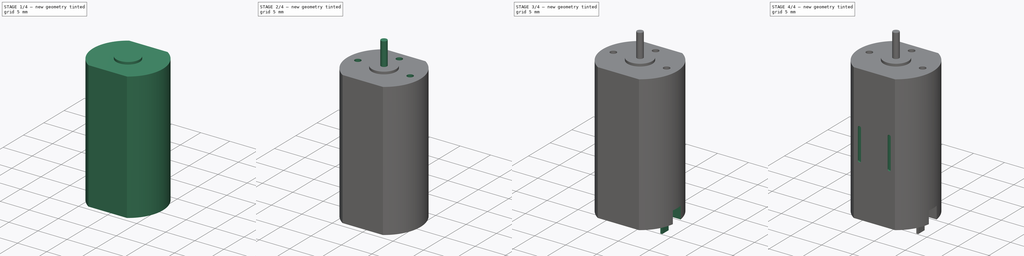
[diagram: build sequence overview — one tinted view per stage of 4, left to right]
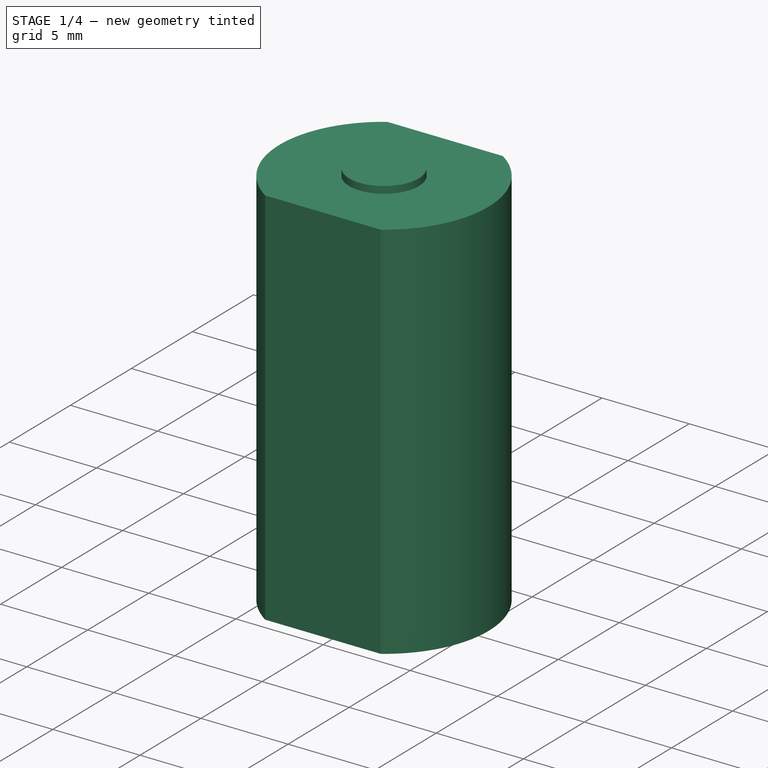
[diagram: stage 1 of 4 — iso view after this stage's code; geometry added in this stage tinted green]
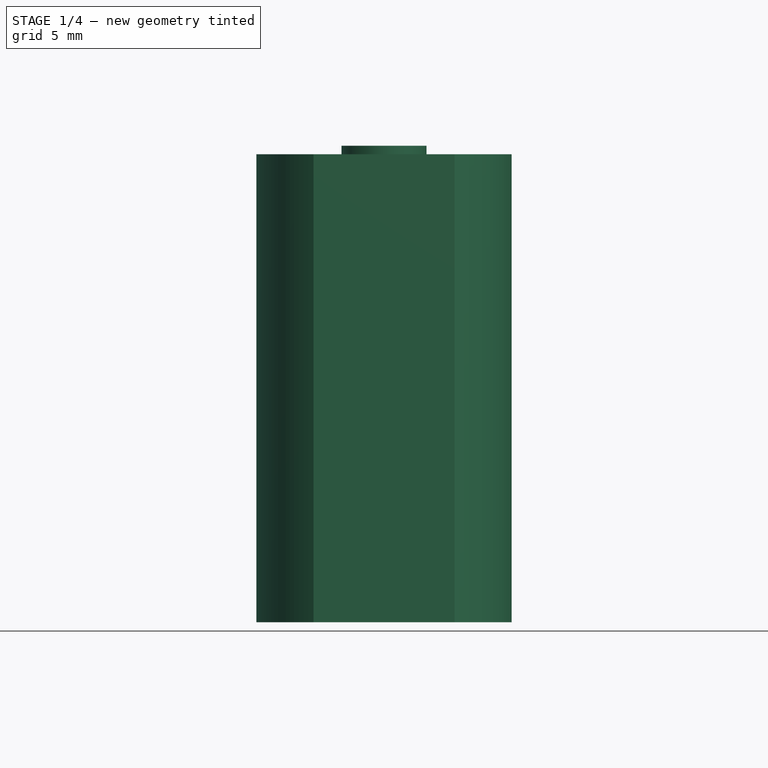
[diagram: stage 1 of 4 — front view after this stage's code; geometry added in this stage tinted green]
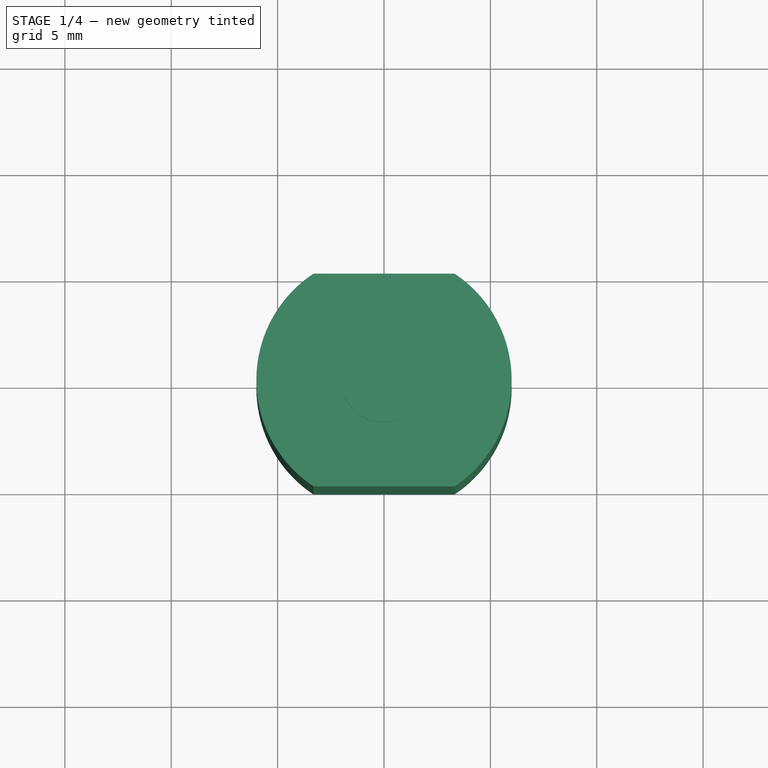
[diagram: stage 1 of 4 — top view after this stage's code; geometry added in this stage tinted green]
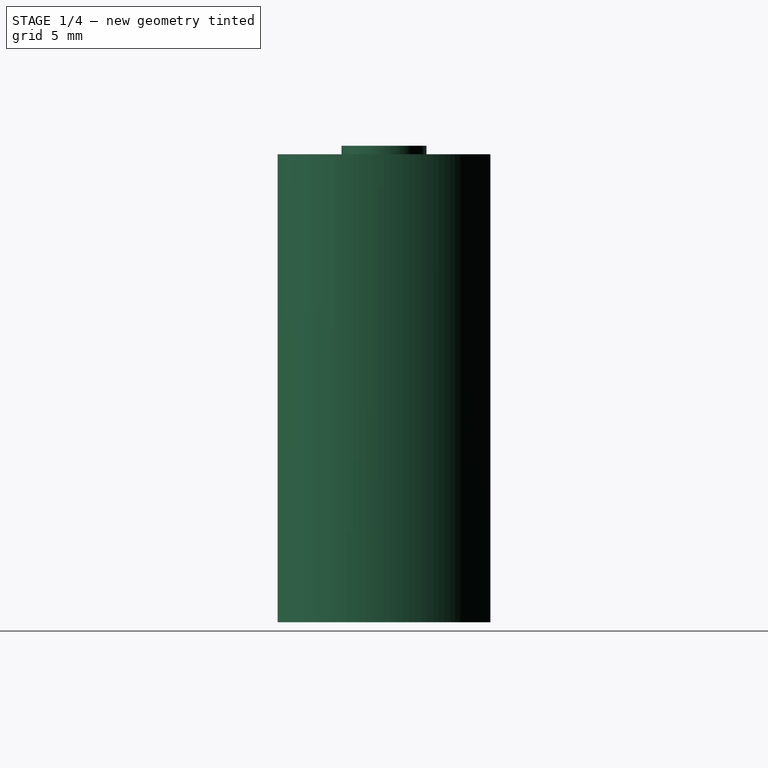
[diagram: stage 1 of 4 — right view after this stage's code; geometry added in this stage tinted green]
FCSTD DOCUMENT  (FreeCAD 0.18R16131 (Git))
Label: Micromotor
License: All rights reserved
LicenseURL: http://en.wikipedia.org/wiki/All_rights_reserved
objects: Sketcher::SketchObject×8, PartDesign::Pad×5, PartDesign::Pocket×3, PartDesign::PolarPattern×1, PartDesign::Body×1
note: 26 computed .brp shape members not serialized (recipe doc carries the construction recipe); baked Part::Feature solids carry a one-line shape summary decoded from their .brp

FEATURE [Sketcher::SketchObject] Sketch
  MapMode = 5
  Support = -> [XY_Plane]
  sketch-geometry (4):
    g0: ArcOfCircle CenterX=0 CenterY=0 CenterZ=0 NormalX=0 NormalY=0 NormalZ=1 AngleXU=0 Radius=6 StartAngle=2.15648 EndAngle=4.1267
    g1: ArcOfCircle CenterX=0 CenterY=0 CenterZ=0 NormalX=0 NormalY=0 NormalZ=1 AngleXU=0 Radius=6 StartAngle=5.29807 EndAngle=7.2683
    g2: LineSegment StartX=-3.31662 StartY=5 StartZ=0 EndX=3.31662 EndY=5 EndZ=0
    g3: LineSegment StartX=-3.31662 StartY=-5 StartZ=0 EndX=3.31662 EndY=-5 EndZ=0
  constraints (12):
    c: Coincident(g0,g-1)
    c: Coincident(g1,g0)
    c: Coincident(g2,g0)
    c: Coincident(g2,g1)
    c: Horizontal(g2)
    c: Coincident(g3,g0)
    c: Coincident(g3,g1)
    c: Horizontal(g3)
    c: Equal(g3,g2)
    c: DistanceY(g0,g0) = 10
    c: Radius(g0) = 6
    c: Equal(g0,g1)
FEATURE [PartDesign::Pad] Pad
  Length = 22
  Length2 = 100
  Midplane = true
  Profile = -> Sketch
  Type = 0
FEATURE [Sketcher::SketchObject] Sketch001
  MapMode = 5
  Placement = pos=(0,0,11) rot=(0,0,1;0rad)
  Support = -> [Pad]
  sketch-geometry (1):
    g0: Circle CenterX=0 CenterY=0 CenterZ=0 NormalX=0 NormalY=0 NormalZ=1 AngleXU=0 Radius=2
  constraints (2):
    c: Coincident(g0,g-1)
    c: Radius(g0) = 2
FEATURE [PartDesign::Pad] Pad001
  BaseFeature = -> Pad
  Length = 0.4
  Length2 = 100
  Profile = -> Sketch001
  Type = 0
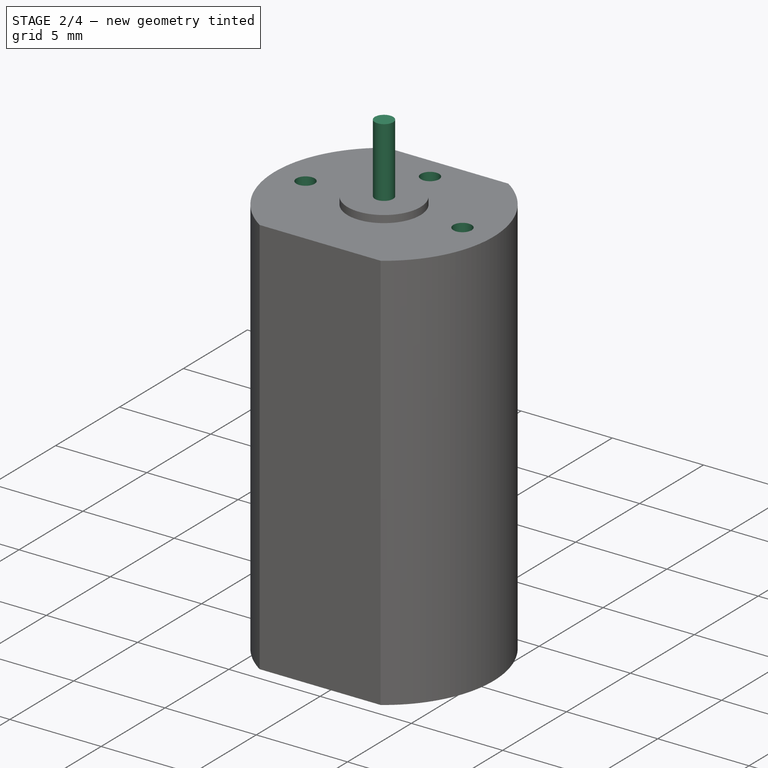
[diagram: stage 2 of 4 — iso view after this stage's code; geometry added in this stage tinted green]
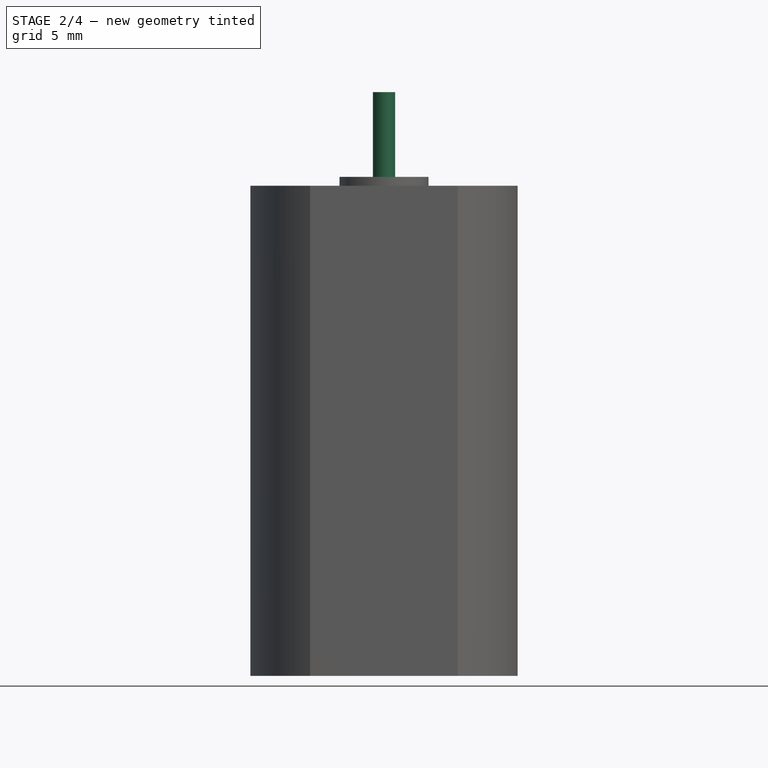
[diagram: stage 2 of 4 — front view after this stage's code; geometry added in this stage tinted green]
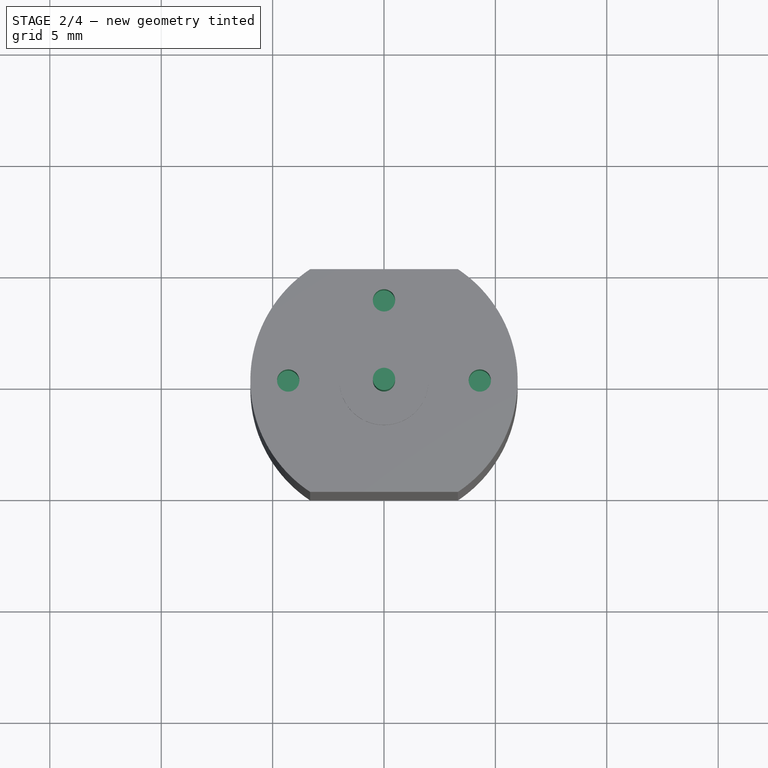
[diagram: stage 2 of 4 — top view after this stage's code; geometry added in this stage tinted green]
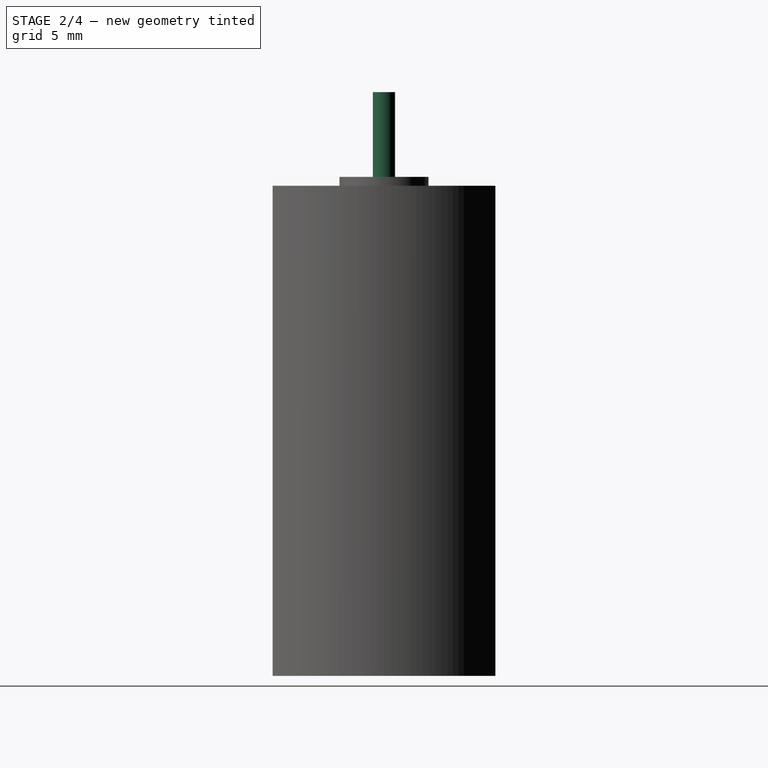
[diagram: stage 2 of 4 — right view after this stage's code; geometry added in this stage tinted green]
FEATURE [Sketcher::SketchObject] Sketch002
  MapMode = 5
  Placement = pos=(0,0,11.4) rot=(0,0,1;0rad)
  Support = -> [Pad001]
  sketch-geometry (1):
    g0: Circle CenterX=0 CenterY=0 CenterZ=0 NormalX=0 NormalY=0 NormalZ=1 AngleXU=0 Radius=0.5
  constraints (2):
    c: Coincident(g0,g-1)
    c: Radius(g0) = 0.5
FEATURE [PartDesign::Pad] Pad002
  BaseFeature = -> Pad001
  Length = 3.8
  Length2 = 100
  Profile = -> Sketch002
  Type = 0
FEATURE [Sketcher::SketchObject] Sketch003
  MapMode = 5
  Placement = pos=(0,0,11) rot=(0,0,1;0rad)
  Support = -> [Pad002]
  sketch-geometry (5):
    g0: Circle CenterX=0 CenterY=3.6 CenterZ=0 NormalX=0 NormalY=0 NormalZ=1 AngleXU=0 Radius=0.5
    g1: Circle CenterX=-4.3 CenterY=0 CenterZ=0 NormalX=0 NormalY=0 NormalZ=1 AngleXU=0 Radius=0.5
    g2: Circle CenterX=4.3 CenterY=0 CenterZ=0 NormalX=0 NormalY=0 NormalZ=1 AngleXU=0 Radius=0.5
    g3: LineSegment [constr] StartX=4.3 StartY=0 StartZ=0 EndX=0 EndY=0 EndZ=0
    g4: LineSegment [constr] StartX=-4.3 StartY=0 StartZ=0 EndX=0 EndY=0 EndZ=0
  constraints (13):
    c: PointOnObject(g0,g-2)
    c: PointOnObject(g1,g-1)
    c: PointOnObject(g2,g-1)
    c: DistanceY(g-1,g0) = 3.6
    c: DistanceX(g-1,g2) = 4.3
    c: Coincident(g3,g2)
    c: Coincident(g3,g-1)
    c: Coincident(g4,g1)
    c: Coincident(g-1,g4)
    c: Equal(g4,g3)
    c: Equal(g0,g1)
    c: Equal(g1,g2)
    c: Radius(g0) = 0.5
FEATURE [PartDesign::Pocket] Pocket
  BaseFeature = -> Pad002
  Length = 3
  Length2 = 100
  Profile = -> Sketch003
  Type = 0
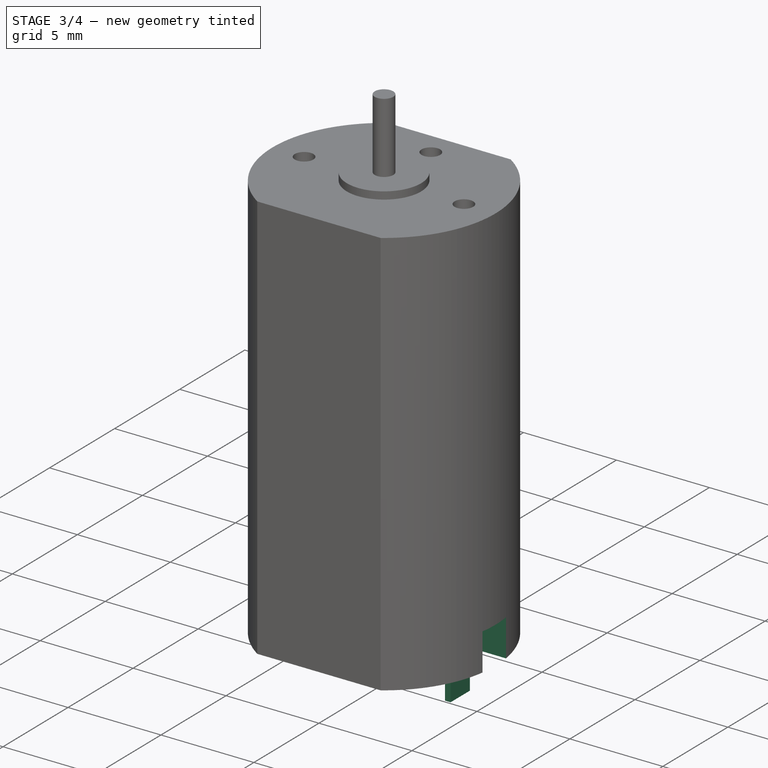
[diagram: stage 3 of 4 — iso view after this stage's code; geometry added in this stage tinted green]
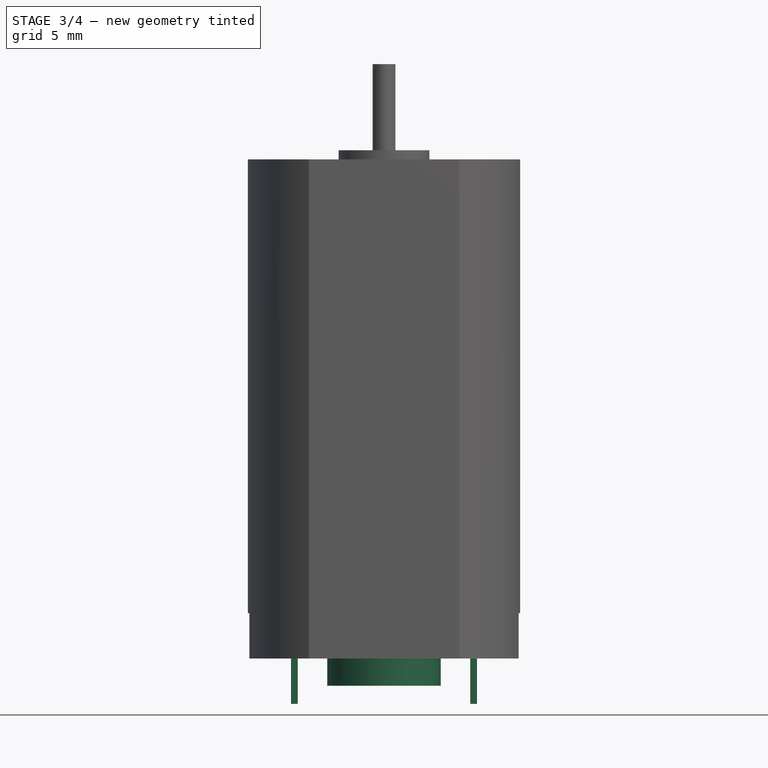
[diagram: stage 3 of 4 — front view after this stage's code; geometry added in this stage tinted green]
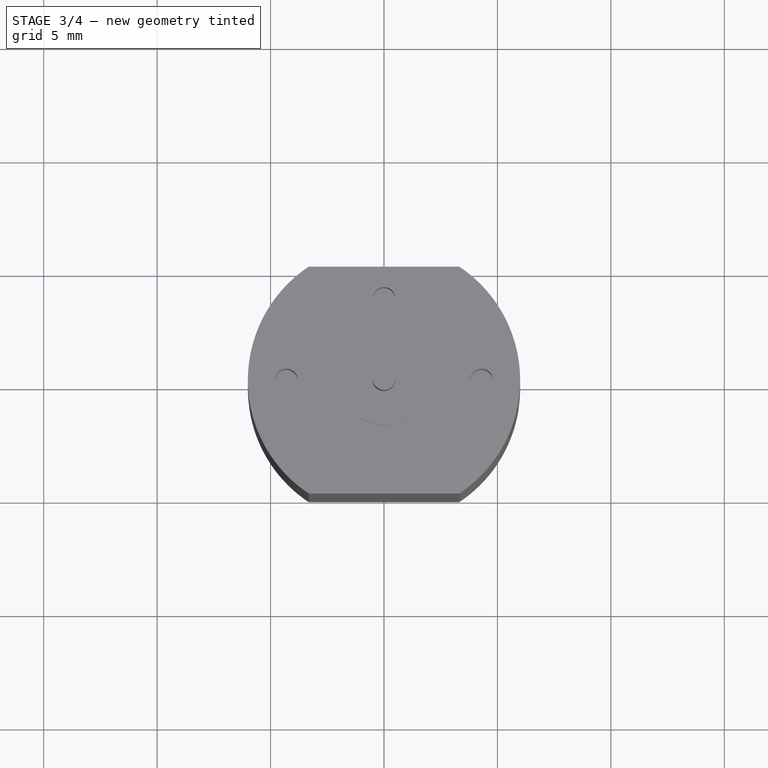
[diagram: stage 3 of 4 — top view after this stage's code; geometry added in this stage tinted green]
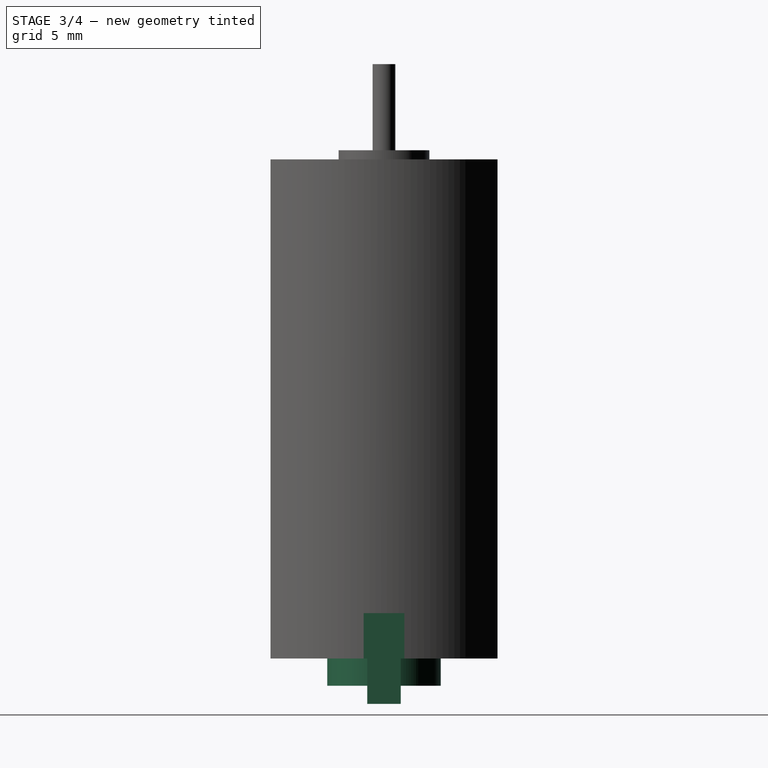
[diagram: stage 3 of 4 — right view after this stage's code; geometry added in this stage tinted green]
FEATURE [Sketcher::SketchObject] Sketch004
  MapMode = 5
  Placement = pos=(0,0,-11) rot=(1,0,0;3.14159rad)
  Support = -> [Pocket]
  sketch-geometry (2):
    g0: Circle CenterX=0 CenterY=0 CenterZ=0 NormalX=0 NormalY=0 NormalZ=1 AngleXU=0 Radius=2.5
    g1: Circle CenterX=0 CenterY=0 CenterZ=0 NormalX=0 NormalY=0 NormalZ=1 AngleXU=0 Radius=1
  constraints (4):
    c: Coincident(g0,g-1)
    c: Radius(g0) = 2.5
    c: Coincident(g1,g0)
    c: Radius(g1) = 1
FEATURE [PartDesign::Pad] Pad003
  BaseFeature = -> Pocket
  Length = 1.2
  Length2 = 100
  Profile = -> Sketch004
  Type = 0
FEATURE [Sketcher::SketchObject] Sketch005
  MapMode = 5
  Placement = pos=(0,0,-11) rot=(1,0,0;3.14159rad)
  Support = -> [Pad003]
  sketch-geometry (12):
    g0: LineSegment StartX=-7.5 StartY=0.9 StartZ=0 EndX=-4.5 EndY=0.9 EndZ=0
    g1: LineSegment StartX=-4.5 StartY=0.9 StartZ=0 EndX=-4.5 EndY=-0.9 EndZ=0
    g2: LineSegment StartX=-4.5 StartY=-0.9 StartZ=0 EndX=-7.5 EndY=-0.9 EndZ=0
    g3: LineSegment StartX=-7.5 StartY=-0.9 StartZ=0 EndX=-7.5 EndY=0.9 EndZ=0
    g4: LineSegment StartX=7.5 StartY=0.9 StartZ=0 EndX=4.5 EndY=0.9 EndZ=0
    g5: LineSegment StartX=4.5 StartY=0.9 StartZ=0 EndX=4.5 EndY=-0.9 EndZ=0
    g6: LineSegment StartX=4.5 StartY=-0.9 StartZ=0 EndX=7.5 EndY=-0.9 EndZ=0
    g7: LineSegment StartX=7.5 StartY=-0.9 StartZ=0 EndX=7.5 EndY=0.9 EndZ=0
    g8: LineSegment [constr] StartX=-4.5 StartY=0.9 StartZ=0 EndX=0 EndY=0 EndZ=0
    g9: LineSegment [constr] StartX=0 StartY=0 StartZ=0 EndX=-4.5 EndY=-0.9 EndZ=0
    g10: LineSegment [constr] StartX=0 StartY=0 StartZ=0 EndX=4.5 EndY=0.9 EndZ=0
    g11: LineSegment [constr] StartX=0 StartY=0 StartZ=0 EndX=4.5 EndY=-0.9 EndZ=0
  constraints (32):
    c: Coincident(g0,g1)
    c: Coincident(g1,g2)
    c: Coincident(g2,g3)
    c: Coincident(g3,g0)
    c: Horizontal(g0)
    c: Horizontal(g2)
    c: Vertical(g1)
    c: Vertical(g3)
    c: Coincident(g4,g5)
    c: Coincident(g5,g6)
    c: Coincident(g6,g7)
    c: Coincident(g7,g4)
    c: Horizontal(g4)
    c: Horizontal(g6)
    c: Vertical(g5)
    c: Vertical(g7)
    c: Equal(g1,g5)
    c: Equal(g4,g0)
    c: Coincident(g8,g0)
    c: Coincident(g8,g-1)
    c: Coincident(g9,g8)
    c: Coincident(g9,g1)
    c: Coincident(g10,g8)
    c: Coincident(g10,g4)
    c: Coincident(g11,g8)
    c: Coincident(g11,g5)
    c: Equal(g11,g10)
    c: Equal(g10,g8)
    c: Equal(g8,g9)
    c: DistanceX(g0,g0) = 3
    c: DistanceX(g0,g4) = 9
    c: DistanceY(g3,g3) = 1.8
FEATURE [PartDesign::Pocket] Pocket001
  BaseFeature = -> Pad003
  Length = 2
  Length2 = 100
  Profile = -> Sketch005
  Type = 0
FEATURE [Sketcher::SketchObject] Sketch006
  MapMode = 5
  Placement = pos=(0,0,-11) rot=(1,0,0;3.14159rad)
  Support = -> [Pocket001]
  sketch-geometry (12):
    g0: LineSegment StartX=-4.1 StartY=0.739024 StartZ=0 EndX=-3.8 EndY=0.739024 EndZ=0
    g1: LineSegment StartX=-3.8 StartY=0.739024 StartZ=0 EndX=-3.8 EndY=-0.739024 EndZ=0
    g2: LineSegment StartX=-3.8 StartY=-0.739024 StartZ=0 EndX=-4.1 EndY=-0.739024 EndZ=0
    g3: LineSegment StartX=-4.1 StartY=-0.739024 StartZ=0 EndX=-4.1 EndY=0.739024 EndZ=0
    g4: LineSegment StartX=3.8 StartY=0.739024 StartZ=0 EndX=4.1 EndY=0.739024 EndZ=0
    g5: LineSegment StartX=4.1 StartY=0.739024 StartZ=0 EndX=4.1 EndY=-0.739024 EndZ=0
    g6: LineSegment StartX=4.1 StartY=-0.739024 StartZ=0 EndX=3.8 EndY=-0.739024 EndZ=0
    g7: LineSegment StartX=3.8 StartY=-0.739024 StartZ=0 EndX=3.8 EndY=0.739024 EndZ=0
    g8: LineSegment [constr] StartX=-3.8 StartY=0.739024 StartZ=0 EndX=0 EndY=0 EndZ=0
    g9: LineSegment [constr] StartX=0 StartY=0 StartZ=0 EndX=3.8 EndY=0.739024 EndZ=0
    g10: LineSegment [constr] StartX=3.8 StartY=-0.739024 StartZ=0 EndX=0 EndY=0 EndZ=0
    g11: LineSegment [constr] StartX=0 StartY=0 StartZ=0 EndX=-3.8 EndY=-0.739024 EndZ=0
  constraints (31):
    c: Coincident(g0,g1)
    c: Coincident(g1,g2)
    c: Coincident(g2,g3)
    c: Coincident(g3,g0)
    c: Horizontal(g0)
    c: Horizontal(g2)
    c: Vertical(g1)
    c: Vertical(g3)
    c: Coincident(g4,g5)
    c: Coincident(g5,g6)
    c: Coincident(g6,g7)
    c: Coincident(g7,g4)
    c: Horizontal(g4)
    c: Horizontal(g6)
    c: Vertical(g5)
    c: Vertical(g7)
    c: Coincident(g8,g0)
    c: Coincident(g8,g-1)
    c: Coincident(g9,g8)
    c: Coincident(g9,g4)
    c: Coincident(g10,g6)
    c: Coincident(g10,g8)
    c: Coincident(g11,g8)
    c: Coincident(g11,g1)
    c: Equal(g11,g8)
    c: Equal(g8,g9)
    c: Equal(g9,g10)
    c: Equal(g7,g1)
    c: Equal(g0,g4)
    c: DistanceX(g0,g0) = 0.3
    c: DistanceX(g0,g4) = 8.2
FEATURE [PartDesign::Pad] Pad004
  BaseFeature = -> Pocket001
  Length = 2
  Length2 = 100
  Profile = -> Sketch006
  Type = 0
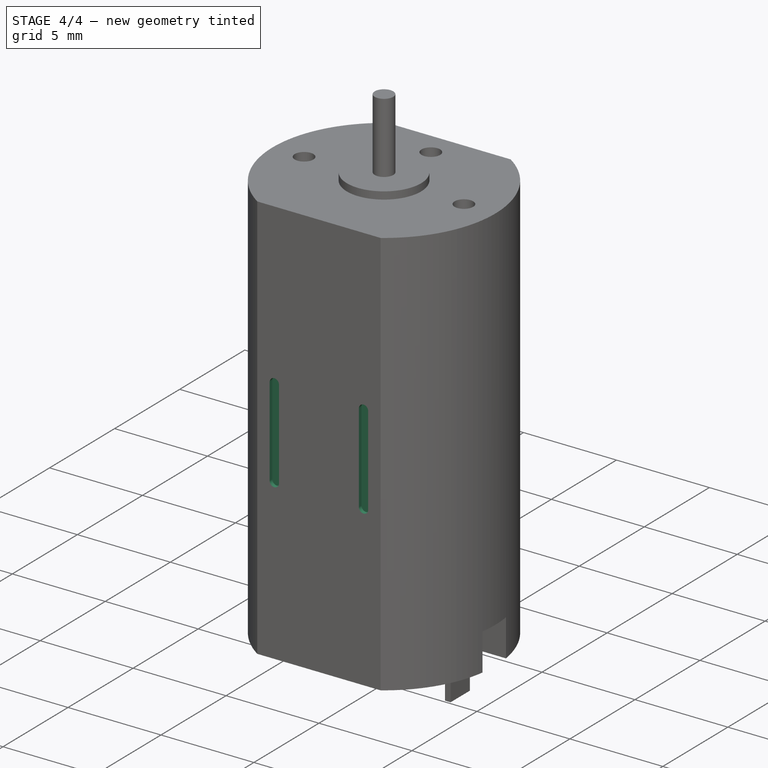
[diagram: stage 4 of 4 — iso view after this stage's code; geometry added in this stage tinted green]
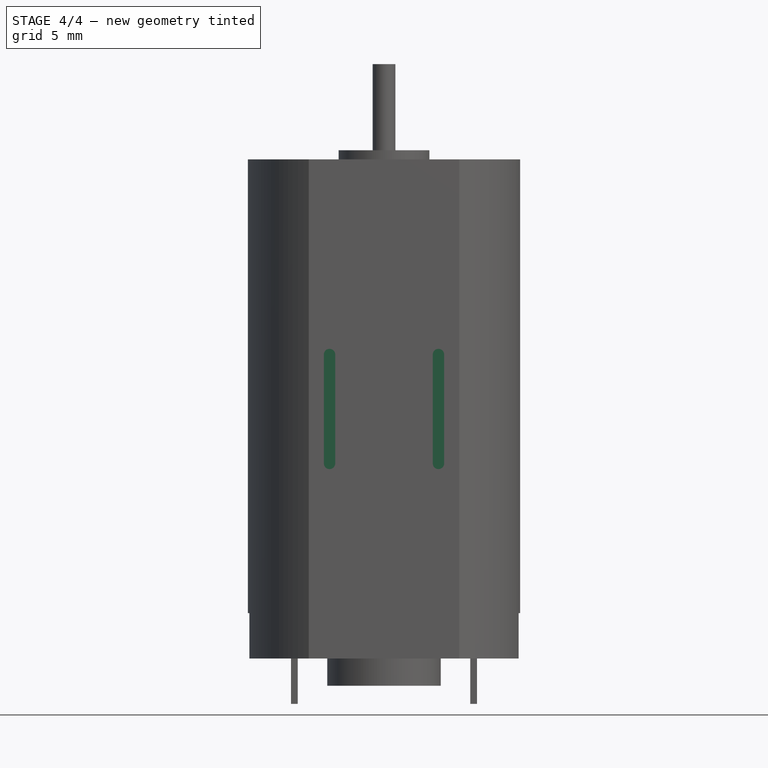
[diagram: stage 4 of 4 — front view after this stage's code; geometry added in this stage tinted green]
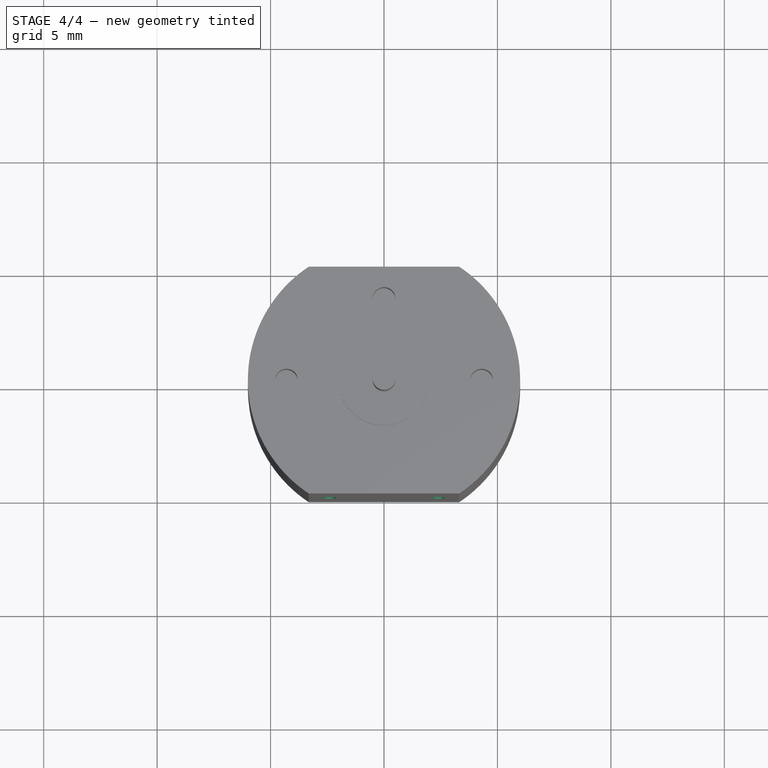
[diagram: stage 4 of 4 — top view after this stage's code; geometry added in this stage tinted green]
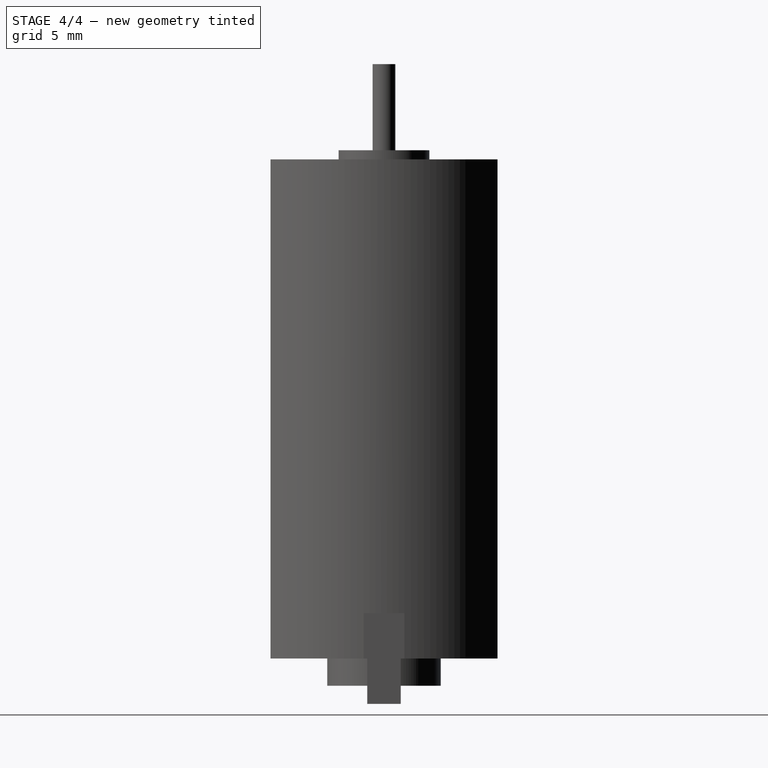
[diagram: stage 4 of 4 — right view after this stage's code; geometry added in this stage tinted green]
FEATURE [Sketcher::SketchObject] Sketch007
  MapMode = 5
  Placement = pos=(0,-5,0) rot=(1,0,0;1.5708rad)
  Support = -> [Pad004]
  sketch-geometry (12):
    g0: ArcOfCircle CenterX=-2.4 CenterY=2.4 CenterZ=0 NormalX=0 NormalY=0 NormalZ=1 AngleXU=0 Radius=0.25 StartAngle=0 EndAngle=3.14159
    g1: ArcOfCircle CenterX=-2.4 CenterY=-2.4 CenterZ=0 NormalX=0 NormalY=0 NormalZ=1 AngleXU=0 Radius=0.25 StartAngle=3.14159 EndAngle=6.28319
    g2: LineSegment StartX=-2.65 StartY=2.4 StartZ=0 EndX=-2.65 EndY=-2.4 EndZ=0
    g3: LineSegment StartX=-2.15 StartY=2.4 StartZ=0 EndX=-2.15 EndY=-2.4 EndZ=0
    g4: ArcOfCircle CenterX=2.4 CenterY=2.4 CenterZ=0 NormalX=0 NormalY=0 NormalZ=1 AngleXU=0 Radius=0.25 StartAngle=6e-16 EndAngle=3.14159
    g5: ArcOfCircle CenterX=2.4 CenterY=-2.4 CenterZ=0 NormalX=0 NormalY=0 NormalZ=1 AngleXU=0 Radius=0.25 StartAngle=3.14159 EndAngle=6.28319
    g6: LineSegment StartX=2.15 StartY=2.4 StartZ=0 EndX=2.15 EndY=-2.4 EndZ=0
    g7: LineSegment StartX=2.65 StartY=2.4 StartZ=0 EndX=2.65 EndY=-2.4 EndZ=0
    g8: LineSegment [constr] StartX=0 StartY=0 StartZ=0 EndX=-2.4 EndY=-2.4 EndZ=0
    g9: LineSegment [constr] StartX=0 StartY=0 StartZ=0 EndX=-2.4 EndY=2.4 EndZ=0
    g10: LineSegment [constr] StartX=0 StartY=0 StartZ=0 EndX=2.4 EndY=2.4 EndZ=0
    g11: LineSegment [constr] StartX=0 StartY=0 StartZ=0 EndX=2.4 EndY=-2.4 EndZ=0
  constraints (28):
    c: Tangent(g0,g3) = 1.5708
    c: Tangent(g0,g2) = -1.5708
    c: Tangent(g2,g1) = -1.5708
    c: Tangent(g3,g1) = 1.5708
    c: Vertical(g2)
    c: Equal(g0,g1)
    c: Tangent(g4,g7) = 1.5708
    c: Tangent(g4,g6) = -1.5708
    c: Tangent(g6,g5) = -1.5708
    c: Tangent(g7,g5) = 1.5708
    c: Vertical(g6)
    c: Equal(g4,g5)
    c: Coincident(g8,g-1)
    c: Coincident(g8,g1)
    c: Coincident(g9,g8)
    c: Coincident(g9,g0)
    c: Coincident(g10,g8)
    c: Coincident(g4,g10)
    c: Coincident(g11,g8)
    c: Coincident(g11,g5)
    c: Equal(g11,g10)
    c: Equal(g10,g9)
    c: Equal(g9,g8)
    c: Equal(g3,g6)
    c: Equal(g4,g0)
    c: DistanceY(g1,g0) = 4.8
    c: DistanceX(g0,g4) = 4.8
    c: Radius(g1) = 0.25
FEATURE [PartDesign::Pocket] Pocket002
  BaseFeature = -> Pad004
  Length = 0.2
  Length2 = 100
  Profile = -> Sketch007
  Type = 0
FEATURE [PartDesign::PolarPattern] PolarPattern
  Angle = 360
  Axis = -> Z_Axis
  BaseFeature = -> Pocket002
  Occurrences = 2
  Originals = -> [Pocket002]
FEATURE [PartDesign::Body] Body
  Group = -> [Sketch,Pad,Sketch001,Pad001,Sketch002,Pad002,Sketch003,Pocket,Sketch004,Pad003,Sketch005,Pocket001,Sketch006,Pad004,Sketch007,Pocket002,PolarPattern]
  Origin = -> Origin
  Tip = -> PolarPattern
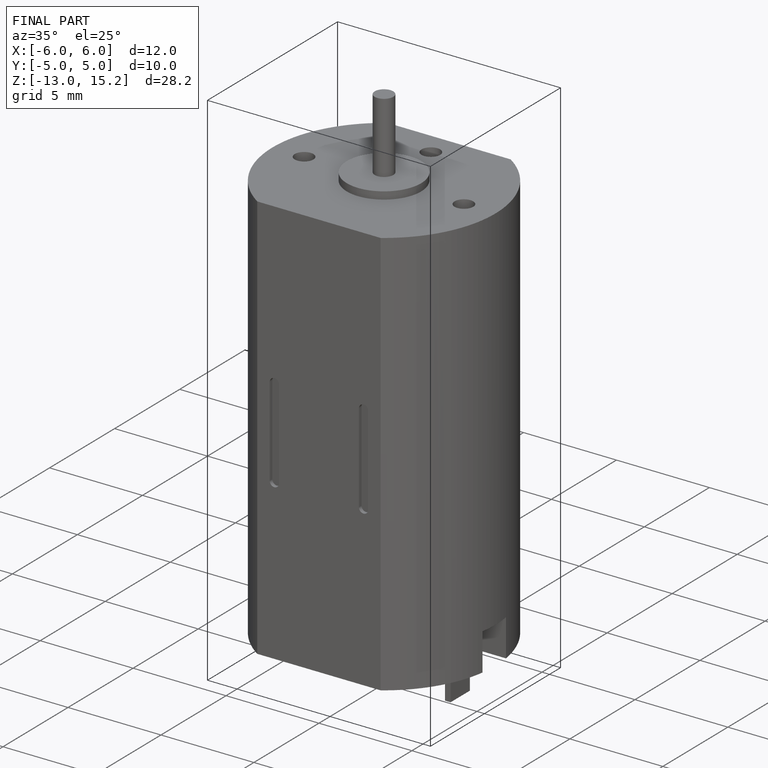
[diagram: finished part — iso view with bounding-box wireframe]
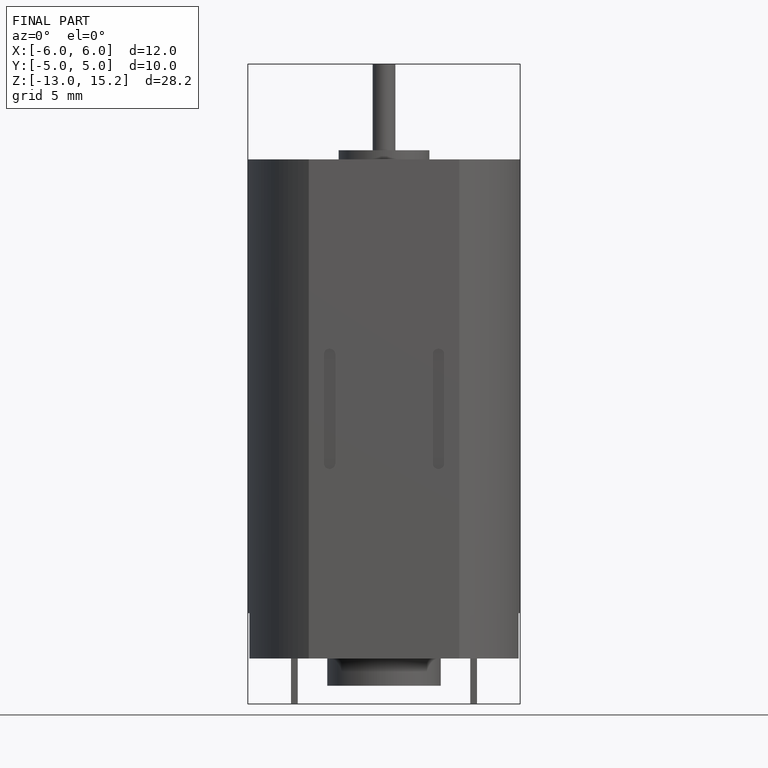
[diagram: finished part — front view with bounding-box wireframe]
